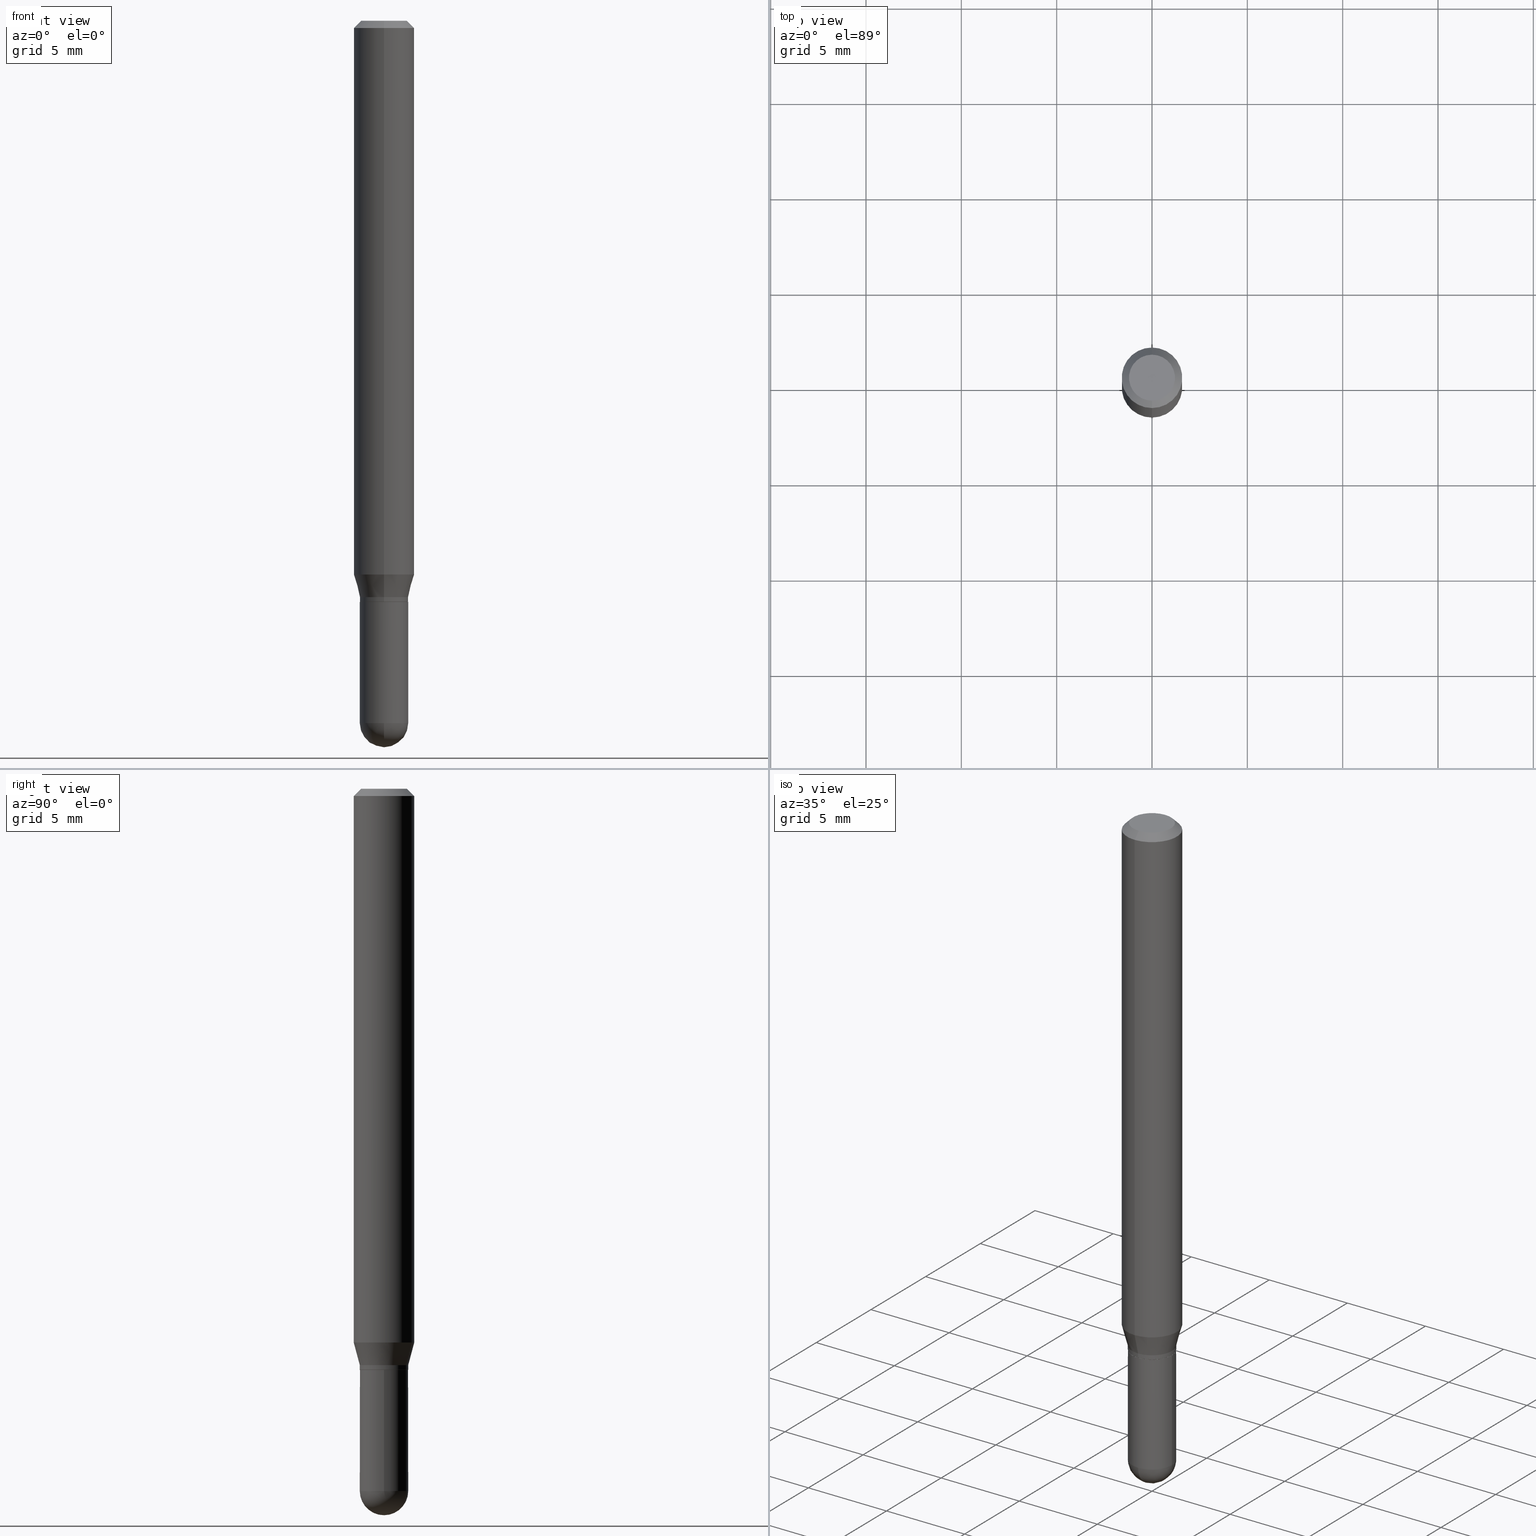
[diagram: canonical four-view strip — front | top / right | iso, engineering-drawing reading convention]
A machine part, canonical four-view strip (front | top / right | iso — engineering-drawing reading convention). The complete STEP part file that produces these views, byte-faithful:
ISO-10303-21;
HEADER;
FILE_DESCRIPTION (( 'STEP AP203' ),
    '1' );
FILE_NAME ('02601.STEP',
    '2024-03-07T20:41:49',
    ( '' ),
    ( '' ),
    'SwSTEP 2.0',
    'SolidWorks 2023',
    '' );
FILE_SCHEMA (( 'CONFIG_CONTROL_DESIGN' ));
ENDSEC;

DATA;
#1 = EDGE_CURVE ( 'NONE', #30, #46, #206, .T. ) ;
#2 = CARTESIAN_POINT ( 'NONE',  ( 0.000000000000000000, 0.000000000000000000, 0.000000000000000000 ) ) ;
#3 = CARTESIAN_POINT ( 'NONE',  ( 3.545929768968448850E-29, -5.062647941322561509E-15, -1.450000000000000178 ) ) ;
#4 = FACE_OUTER_BOUND ( 'NONE', #97, .T. ) ;
#5 = CARTESIAN_POINT ( 'NONE',  ( 8.024525879208538939E-45, -1.145728596932945032E-30, -3.281441226851005816E-16 ) ) ;
#6 = AXIS2_PLACEMENT_3D ( 'NONE', #284, #396, #290 ) ;
#7 = DIRECTION ( 'NONE',  ( 1.000000000000000000, -6.982962677686275388E-15, 0.000000000000000000 ) ) ;
#8 = ADVANCED_FACE ( 'NONE', ( #451 ), #307, .T. ) ;
#9 = FACE_OUTER_BOUND ( 'NONE', #265, .T. ) ;
#10 = CARTESIAN_POINT ( 'NONE',  ( -3.456566525454408447E-16, -0.04950000000000419342, -1.199999999999999956 ) ) ;
#11 = APPROVAL_ROLE ( '' ) ;
#12 = ORIENTED_EDGE ( 'NONE', *, *, #507, .T. ) ;
#13 =( LENGTH_UNIT ( ) NAMED_UNIT ( * ) SI_UNIT ( $, .METRE. ) );
#14 = DIRECTION ( 'NONE',  ( 2.445427275535626126E-29, -3.491540813097021947E-15, -1.000000000000000000 ) ) ;
#15 = AXIS2_PLACEMENT_3D ( 'NONE', #509, #156, #272 ) ;
#16 = CARTESIAN_POINT ( 'NONE',  ( 2.910058457887396519E-29, -4.154933567585457695E-15, -1.190000000000000391 ) ) ;
#17 = CC_DESIGN_PERSON_AND_ORGANIZATION_ASSIGNMENT ( #29, #117, ( #240 ) ) ;
#18 = ORIENTED_EDGE ( 'NONE', *, *, #463, .T. ) ;
#19 = DIRECTION ( 'NONE',  ( 7.105427357601001070E-15, 1.000000000000000000, 0.000000000000000000 ) ) ;
#20 = CARTESIAN_POINT ( 'NONE',  ( -3.491481338842782805E-16, -0.05000000000000513756, -1.449999999999999734 ) ) ;
#21 = EDGE_LOOP ( 'NONE', ( #497, #232, #249, #131, #335 ) ) ;
#22 = CARTESIAN_POINT ( 'NONE',  ( 2.934562567422164701E-29, -4.189777606611775804E-15, -1.200000000000000178 ) ) ;
#23 = ORIENTED_EDGE ( 'NONE', *, *, #474, .F. ) ;
#24 = EDGE_CURVE ( 'NONE', #496, #71, #359, .T. ) ;
#25 = AXIS2_PLACEMENT_3D ( 'NONE', #207, #357, #442 ) ;
#26 = AXIS2_PLACEMENT_3D ( 'NONE', #315, #323, #7 ) ;
#27 = PERSON_AND_ORGANIZATION ( #242, #127 ) ;
#28 = CARTESIAN_POINT ( 'NONE',  ( 2.910058457887396519E-29, -4.154933567585457695E-15, -1.190000000000000391 ) ) ;
#29 = PERSON_AND_ORGANIZATION ( #242, #127 ) ;
#30 = VERTEX_POINT ( 'NONE', #303 ) ;
#31 = EDGE_CURVE ( 'NONE', #36, #235, #461, .T. ) ;
#32 = AXIS2_PLACEMENT_3D ( 'NONE', #55, #61, #297 ) ;
#33 = CARTESIAN_POINT ( 'NONE',  ( 4.440892098500904235E-16, 0.06249999999999599626, -1.143349364905390075 ) ) ;
#34 = APPROVAL_ROLE ( '' ) ;
#35 = UNCERTAINTY_MEASURE_WITH_UNIT (LENGTH_MEASURE( 1.000000000000000082E-05 ), #409, 'distance_accuracy_value', 'NONE');
#36 = VERTEX_POINT ( 'NONE', #147 ) ;
#37 = DIRECTION ( 'NONE',  ( -2.445427275535626126E-29, 3.491540813097021947E-15, 1.000000000000000000 ) ) ;
#38 = DIRECTION ( 'NONE',  ( 1.000000000000000000, -6.982962677686265922E-15, 4.876176775795936353E-29 ) ) ;
#39 = ADVANCED_FACE ( 'NONE', ( #306 ), #152, .T. ) ;
#40 = DIRECTION ( 'NONE',  ( -6.982962677686266711E-15, -1.000000000000000000, 3.491540813097022342E-15 ) ) ;
#41 = DIRECTION ( 'NONE',  ( -6.982962677686265922E-15, -1.000000000000000000, 3.483106191921935554E-15 ) ) ;
#42 = CONICAL_SURFACE ( 'NONE', #144, 0.05000000000000006523, 0.2617993877991499629 ) ;
#43 = APPROVAL_PERSON_ORGANIZATION ( #464, #158, #34 ) ;
#44 = LOCAL_TIME ( 15, 41, 49.00000000000000000, #493 ) ;
#45 = CARTESIAN_POINT ( 'NONE',  ( 2.910058457887396519E-29, -4.154933567585457695E-15, -1.190000000000000391 ) ) ;
#46 = VERTEX_POINT ( 'NONE', #244 ) ;
#47 = CYLINDRICAL_SURFACE ( 'NONE', #492, 0.05000000000000006523 ) ;
#48 = ORIENTED_EDGE ( 'NONE', *, *, #148, .F. ) ;
#49 = EDGE_CURVE ( 'NONE', #218, #46, #170, .T. ) ;
#50 = LINE ( 'NONE', #211, #439 ) ;
#51 = CIRCLE ( 'NONE', #105, 0.05000000000000006523 ) ;
#52 = PERSON_AND_ORGANIZATION ( #242, #127 ) ;
#53 = EDGE_CURVE ( 'NONE', #36, #332, #51, .T. ) ;
#54 = ORIENTED_EDGE ( 'NONE', *, *, #331, .T. ) ;
#55 = CARTESIAN_POINT ( 'NONE',  ( 2.934512730642751911E-29, -4.189848975716427126E-15, -1.200000000000000178 ) ) ;
#56 = DIRECTION ( 'NONE',  ( -2.445427275535626406E-29, 3.491540813097021947E-15, 1.000000000000000000 ) ) ;
#57 = EDGE_CURVE ( 'NONE', #413, #351, #510, .T. ) ;
#58 = CIRCLE ( 'NONE', #163, 0.04950000000000000233 ) ;
#59 = VECTOR ( 'NONE', #261, 39.37007874015748143 ) ;
#60 = ORIENTED_EDGE ( 'NONE', *, *, #133, .F. ) ;
#61 = DIRECTION ( 'NONE',  ( -2.445427275535626406E-29, 3.491540813097021947E-15, 1.000000000000000000 ) ) ;
#62 = CARTESIAN_POINT ( 'NONE',  ( 3.552713678800505071E-16, 0.05000000000000006523, -1.745770406548513192E-16 ) ) ;
#63 = DIRECTION ( 'NONE',  ( -6.982962677686265922E-15, -1.000000000000000000, 2.759442417842689940E-15 ) ) ;
#64 = EDGE_CURVE ( 'NONE', #218, #447, #58, .T. ) ;
#65 = ORIENTED_EDGE ( 'NONE', *, *, #379, .T. ) ;
#66 = LINE ( 'NONE', #217, #59 ) ;
#67 = DIRECTION ( 'NONE',  ( -2.445427275535626406E-29, 3.491540813097021947E-15, 1.000000000000000000 ) ) ;
#68 = AXIS2_PLACEMENT_3D ( 'NONE', #179, #490, #369 ) ;
#69 = PERSON_AND_ORGANIZATION ( #242, #127 ) ;
#70 = ADVANCED_BREP_SHAPE_REPRESENTATION ( '02601', ( #285, #435, #15 ), #187 ) ;
#71 = VERTEX_POINT ( 'NONE', #288 ) ;
#72 = LINE ( 'NONE', #380, #356 ) ;
#73 = DATE_TIME_ROLE ( 'creation_date' ) ;
#74 = EDGE_LOOP ( 'NONE', ( #213, #487, #478, #23 ) ) ;
#75 = CARTESIAN_POINT ( 'NONE',  ( 2.933290017004984254E-29, -4.188103205309878536E-15, -1.199500000000000233 ) ) ;
#76 = PRODUCT_DEFINITION_SHAPE ( 'NONE', 'NONE',  #109 ) ;
#77 = CARTESIAN_POINT ( 'NONE',  ( -3.773273898774340269E-16, -0.04749999999999999362, -1.622959340629920144E-16 ) ) ;
#78 = APPROVAL_DATE_TIME ( #375, #158 ) ;
#79 = EDGE_CURVE ( 'NONE', #332, #36, #502, .T. ) ;
#80 = AXIS2_PLACEMENT_3D ( 'NONE', #304, #220, #450 ) ;
#81 = ORIENTED_EDGE ( 'NONE', *, *, #57, .F. ) ;
#82 = CARTESIAN_POINT ( 'NONE',  ( 3.541653937522551347E-29, -5.068771175318297793E-15, -1.450000000000000178 ) ) ;
#83 = CARTESIAN_POINT ( 'NONE',  ( 4.440892098500907193E-16, 0.06249999999999995143, -0.01500000000000054588 ) ) ;
#84 = CARTESIAN_POINT ( 'NONE',  ( 0.04999999999999999584, -3.491481338843132862E-16, 2.438088387897967896E-30 ) ) ;
#85 = CYLINDRICAL_SURFACE ( 'NONE', #151, 0.06250000000000000000 ) ;
#86 = DIRECTION ( 'NONE',  ( -4.851104656540964275E-15, -0.7071067811865500152, -0.7071067811865450192 ) ) ;
#87 = VECTOR ( 'NONE', #177, 39.37007874015748143 ) ;
#88 = CIRCLE ( 'NONE', #347, 0.04749999999999999362 ) ;
#89 = EDGE_CURVE ( 'NONE', #351, #209, #120, .T. ) ;
#90 = DIRECTION ( 'NONE',  ( 1.000000000000000000, -6.982962677686274599E-15, 0.000000000000000000 ) ) ;
#91 = ADVANCED_FACE ( 'NONE', ( #122 ), #440, .F. ) ;
#92 = ORIENTED_EDGE ( 'NONE', *, *, #338, .F. ) ;
#93 = FACE_OUTER_BOUND ( 'NONE', #287, .T. ) ;
#94 = AXIS2_PLACEMENT_3D ( 'NONE', #99, #414, #63 ) ;
#95 = AXIS2_PLACEMENT_3D ( 'NONE', #3, #473, #203 ) ;
#96 = APPROVAL_PERSON_ORGANIZATION ( #382, #421, #343 ) ;
#97 = EDGE_LOOP ( 'NONE', ( #48, #454 ) ) ;
#98 = EDGE_CURVE ( 'NONE', #437, #496, #280, .T. ) ;
#99 = CARTESIAN_POINT ( 'NONE',  ( 2.934512730642751911E-29, -4.189848975716427126E-15, -1.200000000000000178 ) ) ;
#100 = CIRCLE ( 'NONE', #370, 0.05000000000000014849 ) ;
#101 = DIRECTION ( 'NONE',  ( -6.982962677686265133E-15, -1.000000000000000000, 3.491540813097021947E-15 ) ) ;
#102 = ORIENTED_EDGE ( 'NONE', *, *, #89, .T. ) ;
#103 = DATE_AND_TIME ( #305, #495 ) ;
#104 = ORIENTED_EDGE ( 'NONE', *, *, #498, .T. ) ;
#105 = AXIS2_PLACEMENT_3D ( 'NONE', #328, #354, #208 ) ;
#106 = SHAPE_DEFINITION_REPRESENTATION ( #76, #70 ) ;
#107 = CIRCLE ( 'NONE', #503, 0.05000000000000014849 ) ;
#108 = CARTESIAN_POINT ( 'NONE',  ( 0.000000000000000000, 0.000000000000000000, 0.000000000000000000 ) ) ;
#109 = PRODUCT_DEFINITION ( 'UNKNOWN', '', #240, #459 ) ;
#110 = CARTESIAN_POINT ( 'NONE',  ( 3.661789462108859761E-29, -5.246406859258323786E-15, -1.500000000000000444 ) ) ;
#111 = DIRECTION ( 'NONE',  ( -6.982962677686265922E-15, -1.000000000000000000, 4.370956789862821150E-15 ) ) ;
#112 = COORDINATED_UNIVERSAL_TIME_OFFSET ( 5, 0, .BEHIND. ) ;
#113 = DIRECTION ( 'NONE',  ( -6.982962677686265922E-15, -1.000000000000000000, 3.491540813097021947E-15 ) ) ;
#114 = ORIENTED_EDGE ( 'NONE', *, *, #57, .T. ) ;
#115 = DIRECTION ( 'NONE',  ( -2.445427275535626406E-29, 3.491540813097021947E-15, 1.000000000000000000 ) ) ;
#116 = CYLINDRICAL_SURFACE ( 'NONE', #278, 0.05000000000000006523 ) ;
#117 = PERSON_AND_ORGANIZATION_ROLE ( 'creator' ) ;
#118 = VECTOR ( 'NONE', #86, 39.37007874015748143 ) ;
#119 = FACE_OUTER_BOUND ( 'NONE', #225, .T. ) ;
#120 = LINE ( 'NONE', #134, #118 ) ;
#121 = CARTESIAN_POINT ( 'NONE',  ( 3.668140913303519938E-31, -5.237311219645647553E-17, -0.01500000000000032904 ) ) ;
#122 = FACE_OUTER_BOUND ( 'NONE', #266, .T. ) ;
#123 = ORIENTED_EDGE ( 'NONE', *, *, #24, .T. ) ;
#124 = DIRECTION ( 'NONE',  ( -2.445427275535626406E-29, 3.491540813097021947E-15, 1.000000000000000000 ) ) ;
#125 = CIRCLE ( 'NONE', #165, 0.06250000000000000000 ) ;
#126 = ORIENTED_EDGE ( 'NONE', *, *, #289, .T. ) ;
#127 = ORGANIZATION ( 'UNSPECIFIED', 'UNSPECIFIED', '' ) ;
#128 = DIMENSIONAL_EXPONENTS ( 1.000000000000000000, 0.000000000000000000, 0.000000000000000000, 0.000000000000000000, 0.000000000000000000, 0.000000000000000000, 0.000000000000000000 ) ;
#129 = DIRECTION ( 'NONE',  ( -2.445427275535626406E-29, 3.491540813097021947E-15, 1.000000000000000000 ) ) ;
#130 = SPHERICAL_SURFACE ( 'NONE', #25, 0.05000000000000014849 ) ;
#131 = ORIENTED_EDGE ( 'NONE', *, *, #98, .T. ) ;
#132 = CARTESIAN_POINT ( 'NONE',  ( 0.05000000000000000278, -4.538925740496089139E-15, -1.200000000000000178 ) ) ;
#133 = EDGE_CURVE ( 'NONE', #257, #209, #186, .T. ) ;
#134 = CARTESIAN_POINT ( 'NONE',  ( -4.287811248607203282E-16, -0.06250000000000005551, -0.01500000000000011047 ) ) ;
#135 = EDGE_LOOP ( 'NONE', ( #65, #54, #460, #383 ) ) ;
#136 = CIRCLE ( 'NONE', #386, 0.05000000000000000278 ) ;
#137 = VECTOR ( 'NONE', #446, 39.37007874015748143 ) ;
#138 = ORIENTED_EDGE ( 'NONE', *, *, #31, .T. ) ;
#139 = APPLICATION_CONTEXT ( 'configuration controlled 3d designs of mechanical parts and assemblies' ) ;
#140 = CARTESIAN_POINT ( 'NONE',  ( 3.552713678800859565E-16, 0.04999999999999501371, -1.450000000000000400 ) ) ;
#141 = CARTESIAN_POINT ( 'NONE',  ( -3.456566525454408447E-16, -0.04950000000000419342, -1.199999999999999956 ) ) ;
#142 = AXIS2_PLACEMENT_3D ( 'NONE', #22, #184, #145 ) ;
#143 = ADVANCED_FACE ( 'NONE', ( #9 ), #130, .T. ) ;
#144 = AXIS2_PLACEMENT_3D ( 'NONE', #28, #56, #228 ) ;
#145 = DIRECTION ( 'NONE',  ( 1.000000000000000000, -6.982962677686274599E-15, 0.000000000000000000 ) ) ;
#146 = EDGE_LOOP ( 'NONE', ( #294, #102, #18, #92 ) ) ;
#147 = CARTESIAN_POINT ( 'NONE',  ( -3.491481338842845914E-16, -0.05000000000000422162, -1.190000000000000391 ) ) ;
#148 = EDGE_CURVE ( 'NONE', #447, #218, #448, .T. ) ;
#149 = AXIS2_PLACEMENT_3D ( 'NONE', #108, #467, #113 ) ;
#150 = LINE ( 'NONE', #237, #401 ) ;
#151 = AXIS2_PLACEMENT_3D ( 'NONE', #172, #245, #282 ) ;
#152 = CYLINDRICAL_SURFACE ( 'NONE', #149, 0.06250000000000000000 ) ;
#153 = EDGE_LOOP ( 'NONE', ( #397, #81, #300, #364 ) ) ;
#154 = DIRECTION ( 'NONE',  ( -6.982962677686265133E-15, -1.000000000000000000, 3.491540813097021947E-15 ) ) ;
#155 = DATE_AND_TIME ( #238, #44 ) ;
#156 = DIRECTION ( 'NONE',  ( 0.000000000000000000, 0.000000000000000000, 1.000000000000000000 ) ) ;
#157 = ORIENTED_EDGE ( 'NONE', *, *, #24, .F. ) ;
#158 = APPROVAL ( #196, 'UNSPECIFIED' ) ;
#159 = CARTESIAN_POINT ( 'NONE',  ( 2.795977722405976257E-29, -3.992050971195729009E-15, -1.143349364905389853 ) ) ;
#160 = COORDINATED_UNIVERSAL_TIME_OFFSET ( 5, 0, .BEHIND. ) ;
#161 = ORIENTED_EDGE ( 'NONE', *, *, #345, .T. ) ;
#162 = CARTESIAN_POINT ( 'NONE',  ( 2.934512730642751911E-29, -4.189848975716427126E-15, -1.200000000000000178 ) ) ;
#163 = AXIS2_PLACEMENT_3D ( 'NONE', #436, #391, #322 ) ;
#164 = DIRECTION ( 'NONE',  ( -6.982962677686266711E-15, -1.000000000000000000, 3.491540813097022342E-15 ) ) ;
#165 = AXIS2_PLACEMENT_3D ( 'NONE', #159, #312, #111 ) ;
#166 = ORIENTED_EDGE ( 'NONE', *, *, #456, .T. ) ;
#167 = DIRECTION ( 'NONE',  ( -2.445427275535626406E-29, 3.491540813097021947E-15, 1.000000000000000000 ) ) ;
#168 = EDGE_CURVE ( 'NONE', #71, #496, #136, .T. ) ;
#169 = VERTEX_POINT ( 'NONE', #20 ) ;
#170 = LINE ( 'NONE', #402, #419 ) ;
#171 = APPROVAL ( #366, 'UNSPECIFIED' ) ;
#172 = CARTESIAN_POINT ( 'NONE',  ( 0.000000000000000000, 0.000000000000000000, 0.000000000000000000 ) ) ;
#173 = DIRECTION ( 'NONE',  ( 5.024295867788190974E-15, 0.7071067811865681119, 0.7071067811865270336 ) ) ;
#174 = CIRCLE ( 'NONE', #458, 0.06250000000000000000 ) ;
#175 = EDGE_CURVE ( 'NONE', #231, #169, #511, .T. ) ;
#176 = DIRECTION ( 'NONE',  ( -4.937700262164674260E-15, -0.7071067811865632269, 0.7071067811865319186 ) ) ;
#177 = DIRECTION ( 'NONE',  ( -1.807323732225328167E-15, -0.2588190451025179084, 0.9659258262890690894 ) ) ;
#178 = AXIS2_PLACEMENT_3D ( 'NONE', #2, #389, #38 ) ;
#179 = CARTESIAN_POINT ( 'NONE',  ( 3.668140913303519938E-31, -5.237311219645647553E-17, -0.01500000000000032904 ) ) ;
#180 = FACE_OUTER_BOUND ( 'NONE', #251, .T. ) ;
#181 = CARTESIAN_POINT ( 'NONE',  ( -4.364351673553637142E-16, -0.06250000000000399680, -1.143349364905389409 ) ) ;
#182 = EDGE_LOOP ( 'NONE', ( #330, #378, #260, #372 ) ) ;
#183 = CC_DESIGN_DATE_AND_TIME_ASSIGNMENT ( #103, #73, ( #109 ) ) ;
#184 = DIRECTION ( 'NONE',  ( -2.445468806185136597E-29, 3.491481338843145583E-15, 1.000000000000000000 ) ) ;
#185 = CARTESIAN_POINT ( 'NONE',  ( 3.316907271900976096E-16, 0.04749999999999999362, -3.299202499646587840E-16 ) ) ;
#186 = CIRCLE ( 'NONE', #253, 0.06250000000000000000 ) ;
#187 =( GEOMETRIC_REPRESENTATION_CONTEXT ( 3 ) GLOBAL_UNCERTAINTY_ASSIGNED_CONTEXT ( ( #35 ) ) GLOBAL_UNIT_ASSIGNED_CONTEXT ( ( #409, #371, #298 ) ) REPRESENTATION_CONTEXT ( 'NONE', 'WORKASPACE' ) );
#188 = APPLICATION_CONTEXT ( 'configuration controlled 3d designs of mechanical parts and assemblies' ) ;
#189 = COORDINATED_UNIVERSAL_TIME_OFFSET ( 5, 0, .BEHIND. ) ;
#190 = FACE_OUTER_BOUND ( 'NONE', #153, .T. ) ;
#191 = ORIENTED_EDGE ( 'NONE', *, *, #79, .T. ) ;
#192 = ADVANCED_FACE ( 'NONE', ( #363 ), #210, .T. ) ;
#193 = COORDINATED_UNIVERSAL_TIME_OFFSET ( 5, 0, .BEHIND. ) ;
#194 = FACE_OUTER_BOUND ( 'NONE', #21, .T. ) ;
#195 = LINE ( 'NONE', #236, #267 ) ;
#196 = APPROVAL_STATUS ( 'not_yet_approved' ) ;
#197 = ORIENTED_EDGE ( 'NONE', *, *, #387, .F. ) ;
#198 = DIRECTION ( 'NONE',  ( -2.445468806185136597E-29, 3.491481338843145583E-15, 1.000000000000000000 ) ) ;
#199 = CONICAL_SURFACE ( 'NONE', #80, 0.06250000000000000000, 0.7853981633974483900 ) ;
#200 = DIRECTION ( 'NONE',  ( 1.000000000000000000, -6.982962677686275388E-15, 0.000000000000000000 ) ) ;
#201 = APPROVAL_STATUS ( 'not_yet_approved' ) ;
#202 = ORIENTED_EDGE ( 'NONE', *, *, #252, .F. ) ;
#203 = DIRECTION ( 'NONE',  ( 1.000000000000000000, -6.982962677686275388E-15, 0.000000000000000000 ) ) ;
#204 = FACE_OUTER_BOUND ( 'NONE', #374, .T. ) ;
#205 = DIRECTION ( 'NONE',  ( -2.445468806185136597E-29, 3.491481338843145583E-15, 1.000000000000000000 ) ) ;
#206 = CIRCLE ( 'NONE', #299, 0.05000000000000006523 ) ;
#207 = CARTESIAN_POINT ( 'NONE',  ( 3.541653937522551347E-29, -5.068771175318297793E-15, -1.450000000000000178 ) ) ;
#208 = DIRECTION ( 'NONE',  ( -6.982962677686265133E-15, -1.000000000000000000, 2.731847993664259669E-15 ) ) ;
#209 = VERTEX_POINT ( 'NONE', #256 ) ;
#210 = CONICAL_SURFACE ( 'NONE', #480, 0.05000000000000006523, 0.2617993877991499629 ) ;
#211 = CARTESIAN_POINT ( 'NONE',  ( 3.552713678800795963E-16, 0.04999999999999590883, -1.190000000000000613 ) ) ;
#212 = SECURITY_CLASSIFICATION ( '', '', #462 ) ;
#213 = ORIENTED_EDGE ( 'NONE', *, *, #148, .T. ) ;
#214 = DIRECTION ( 'NONE',  ( 1.000000000000000000, -6.982962677686275388E-15, 0.000000000000000000 ) ) ;
#215 = ORIENTED_EDGE ( 'NONE', *, *, #1, .T. ) ;
#216 = DIRECTION ( 'NONE',  ( -1.000000000000000000, 6.982962677686265922E-15, -4.883557194083112340E-29 ) ) ;
#217 = CARTESIAN_POINT ( 'NONE',  ( -3.491481338843137300E-16, -0.05000000000000006523, 1.745770406548513192E-16 ) ) ;
#218 = VERTEX_POINT ( 'NONE', #367 ) ;
#219 = AXIS2_PLACEMENT_3D ( 'NONE', #82, #432, #469 ) ;
#220 = DIRECTION ( 'NONE',  ( 2.445427275535626406E-29, -3.491540813097021947E-15, -1.000000000000000000 ) ) ;
#221 = ORIENTED_EDGE ( 'NONE', *, *, #331, .F. ) ;
#222 = DIRECTION ( 'NONE',  ( -6.982962677686265922E-15, -1.000000000000000000, 0.000000000000000000 ) ) ;
#223 = CARTESIAN_POINT ( 'NONE',  ( 3.840629472727447874E-16, 0.04749999999999999362, -4.939923113072091241E-16 ) ) ;
#224 = DATE_AND_TIME ( #344, #333 ) ;
#225 = EDGE_LOOP ( 'NONE', ( #388, #126, #157, #398, #337 ) ) ;
#226 = CARTESIAN_POINT ( 'NONE',  ( 3.541653937522551347E-29, -5.068771175318297793E-15, -1.450000000000000178 ) ) ;
#227 = PLANE ( 'NONE',  #327 ) ;
#228 = DIRECTION ( 'NONE',  ( -6.982962677686265133E-15, -1.000000000000000000, 2.731847993664259669E-15 ) ) ;
#229 = ORIENTED_EDGE ( 'NONE', *, *, #281, .F. ) ;
#230 = PERSON_AND_ORGANIZATION_ROLE ( 'classification_officer' ) ;
#231 = VERTEX_POINT ( 'NONE', #407 ) ;
#232 = ORIENTED_EDGE ( 'NONE', *, *, #175, .T. ) ;
#233 = SPHERICAL_SURFACE ( 'NONE', #219, 0.05000000000000014849 ) ;
#234 = APPLICATION_PROTOCOL_DEFINITION ( 'international standard', 'config_control_design', 1994, #188 ) ;
#235 = VERTEX_POINT ( 'NONE', #181 ) ;
#236 = CARTESIAN_POINT ( 'NONE',  ( -4.364351673553916201E-16, -0.06250000000000000000, 2.182213008185638717E-16 ) ) ;
#237 = CARTESIAN_POINT ( 'NONE',  ( -0.04999999999999999584, 3.552713678800500634E-16, -2.459467545127452961E-30 ) ) ;
#238 = CALENDAR_DATE ( 2024, 7, 3 ) ;
#239 = CIRCLE ( 'NONE', #264, 0.06250000000000000000 ) ;
#240 = PRODUCT_DEFINITION_FORMATION_WITH_SPECIFIED_SOURCE ( 'ANY', '', #434, .NOT_KNOWN. ) ;
#241 = ADVANCED_FACE ( 'NONE', ( #194 ), #302, .T. ) ;
#242 = PERSON ( 'UNSPECIFIED', 'UNSPECIFIED', 'UNSPECIFIED', ('UNSPECIFIED'), ('UNSPECIFIED'), ('UNSPECIFIED') ) ;
#243 = CARTESIAN_POINT ( 'NONE',  ( 0.000000000000000000, 0.000000000000000000, 0.000000000000000000 ) ) ;
#244 = CARTESIAN_POINT ( 'NONE',  ( 3.552713678800795963E-16, 0.04999999999999583944, -1.199500000000000233 ) ) ;
#245 = DIRECTION ( 'NONE',  ( -2.445427275535626406E-29, 3.491540813097021947E-15, 1.000000000000000000 ) ) ;
#246 = ADVANCED_FACE ( 'NONE', ( #204 ), #233, .T. ) ;
#247 = CONICAL_SURFACE ( 'NONE', #68, 0.06250000000000000000, 0.7853981633974483900 ) ;
#248 = DIRECTION ( 'NONE',  ( 2.438088387897960049E-29, -3.491481338843145188E-15, -1.000000000000000000 ) ) ;
#249 = ORIENTED_EDGE ( 'NONE', *, *, #281, .T. ) ;
#250 = DIRECTION ( 'NONE',  ( -2.445468806185136877E-29, 3.491481338843145188E-15, 1.000000000000000000 ) ) ;
#251 = EDGE_LOOP ( 'NONE', ( #114, #270 ) ) ;
#252 = EDGE_CURVE ( 'NONE', #437, #500, #292, .T. ) ;
#253 = AXIS2_PLACEMENT_3D ( 'NONE', #479, #124, #41 ) ;
#254 = CIRCLE ( 'NONE', #494, 0.05000000000000006523 ) ;
#255 = ORIENTED_EDGE ( 'NONE', *, *, #53, .F. ) ;
#256 = CARTESIAN_POINT ( 'NONE',  ( -4.364351673553912750E-16, -0.06250000000000005551, -0.01500000000000011047 ) ) ;
#257 = VERTEX_POINT ( 'NONE', #83 ) ;
#258 = FACE_OUTER_BOUND ( 'NONE', #182, .T. ) ;
#259 = CARTESIAN_POINT ( 'NONE',  ( 3.545929768968448850E-29, -5.062647941322561509E-15, -1.450000000000000178 ) ) ;
#260 = ORIENTED_EDGE ( 'NONE', *, *, #474, .T. ) ;
#261 = DIRECTION ( 'NONE',  ( -2.445427275535626686E-29, 3.491540813097021947E-15, 1.000000000000000000 ) ) ;
#262 = ADVANCED_FACE ( 'NONE', ( #4 ), #350, .F. ) ;
#263 = VERTEX_POINT ( 'NONE', #33 ) ;
#264 = AXIS2_PLACEMENT_3D ( 'NONE', #121, #115, #273 ) ;
#265 = EDGE_LOOP ( 'NONE', ( #296, #385, #202, #229 ) ) ;
#266 = EDGE_LOOP ( 'NONE', ( #123, #441 ) ) ;
#267 = VECTOR ( 'NONE', #384, 39.37007874015748143 ) ;
#268 = CC_DESIGN_APPROVAL ( #421, ( #240 ) ) ;
#269 = PERSON_AND_ORGANIZATION_ROLE ( 'creator' ) ;
#270 = ORIENTED_EDGE ( 'NONE', *, *, #329, .T. ) ;
#271 = CARTESIAN_POINT ( 'NONE',  ( 3.996802888650851578E-16, 0.04999999999999590883, -1.190000000000000613 ) ) ;
#272 = DIRECTION ( 'NONE',  ( 1.000000000000000000, 0.000000000000000000, 0.000000000000000000 ) ) ;
#273 = DIRECTION ( 'NONE',  ( -6.982962677686265922E-15, -1.000000000000000000, 3.483106191921935554E-15 ) ) ;
#274 = DIRECTION ( 'NONE',  ( -2.445468806185136877E-29, 3.491481338843145188E-15, 1.000000000000000000 ) ) ;
#275 = CC_DESIGN_DATE_AND_TIME_ASSIGNMENT ( #224, #400, ( #212 ) ) ;
#276 = CALENDAR_DATE ( 2024, 7, 3 ) ;
#277 = DIRECTION ( 'NONE',  ( -2.445427275535626406E-29, 3.491540813097021947E-15, 1.000000000000000000 ) ) ;
#278 = AXIS2_PLACEMENT_3D ( 'NONE', #353, #167, #154 ) ;
#279 = MECHANICAL_CONTEXT ( 'NONE', #139, 'mechanical' ) ;
#280 = LINE ( 'NONE', #84, #472 ) ;
#281 = EDGE_CURVE ( 'NONE', #169, #437, #319, .T. ) ;
#282 = DIRECTION ( 'NONE',  ( -6.982962677686265922E-15, -1.000000000000000000, 3.491540813097021947E-15 ) ) ;
#283 = AXIS2_PLACEMENT_3D ( 'NONE', #162, #37, #433 ) ;
#284 = CARTESIAN_POINT ( 'NONE',  ( 2.934512730642751911E-29, -4.189848975716427126E-15, -1.200000000000000178 ) ) ;
#285 = MANIFOLD_SOLID_BREP ( 'Body-Move/Copy2[1]', #491 ) ;
#286 = LOCAL_TIME ( 15, 41, 49.00000000000000000, #112 ) ;
#287 = EDGE_LOOP ( 'NONE', ( #221, #368, #161, #60 ) ) ;
#288 = CARTESIAN_POINT ( 'NONE',  ( -0.05000000000000000278, -4.270941406087117853E-15, -1.200000000000000178 ) ) ;
#289 = EDGE_CURVE ( 'NONE', #231, #71, #150, .T. ) ;
#290 = DIRECTION ( 'NONE',  ( -6.982962677686265922E-15, -1.000000000000000000, 2.759442417842689940E-15 ) ) ;
#291 = EDGE_CURVE ( 'NONE', #46, #30, #254, .T. ) ;
#292 = CIRCLE ( 'NONE', #26, 0.04999999999999999584 ) ;
#293 = ORIENTED_EDGE ( 'NONE', *, *, #53, .T. ) ;
#294 = ORIENTED_EDGE ( 'NONE', *, *, #329, .F. ) ;
#295 = EDGE_CURVE ( 'NONE', #500, #231, #377, .T. ) ;
#296 = ORIENTED_EDGE ( 'NONE', *, *, #507, .F. ) ;
#297 = DIRECTION ( 'NONE',  ( -6.982962677686265922E-15, -1.000000000000000000, 2.759442417842689940E-15 ) ) ;
#298 =( NAMED_UNIT ( * ) SI_UNIT ( $, .STERADIAN. ) SOLID_ANGLE_UNIT ( ) );
#299 = AXIS2_PLACEMENT_3D ( 'NONE', #404, #339, #505 ) ;
#300 = ORIENTED_EDGE ( 'NONE', *, *, #338, .T. ) ;
#301 = VECTOR ( 'NONE', #423, 39.37007874015748143 ) ;
#302 = CYLINDRICAL_SURFACE ( 'NONE', #178, 0.04999999999999999584 ) ;
#303 = CARTESIAN_POINT ( 'NONE',  ( -3.491481338842846900E-16, -0.05000000000000429101, -1.199500000000000011 ) ) ;
#304 = CARTESIAN_POINT ( 'NONE',  ( 3.668140913303519938E-31, -5.237311219645647553E-17, -0.01500000000000032904 ) ) ;
#305 = CALENDAR_DATE ( 2024, 7, 3 ) ;
#306 = FACE_OUTER_BOUND ( 'NONE', #135, .T. ) ;
#307 = CONICAL_SURFACE ( 'NONE', #94, 0.04950000000000000233, 0.7853981633974739252 ) ;
#308 = ORIENTED_EDGE ( 'NONE', *, *, #79, .F. ) ;
#309 = CYLINDRICAL_SURFACE ( 'NONE', #360, 0.04999999999999999584 ) ;
#310 = APPLICATION_PROTOCOL_DEFINITION ( 'international standard', 'config_control_design', 1994, #139 ) ;
#311 = EDGE_CURVE ( 'NONE', #263, #235, #125, .T. ) ;
#312 = DIRECTION ( 'NONE',  ( -2.445427275535626406E-29, 3.491540813097021947E-15, 1.000000000000000000 ) ) ;
#313 = APPROVAL_DATE_TIME ( #155, #171 ) ;
#314 = EDGE_LOOP ( 'NONE', ( #293, #104, #346, #422 ) ) ;
#315 = CARTESIAN_POINT ( 'NONE',  ( 3.545929768968448850E-29, -5.062647941322561509E-15, -1.450000000000000178 ) ) ;
#316 = ADVANCED_FACE ( 'NONE', ( #348 ), #116, .T. ) ;
#317 = CALENDAR_DATE ( 2024, 7, 3 ) ;
#318 = EDGE_LOOP ( 'NONE', ( #215, #166, #255, #197 ) ) ;
#319 = CIRCLE ( 'NONE', #465, 0.04999999999999999584 ) ;
#320 = ADVANCED_FACE ( 'NONE', ( #119 ), #309, .T. ) ;
#321 = LOCAL_TIME ( 15, 41, 49.00000000000000000, #160 ) ;
#322 = DIRECTION ( 'NONE',  ( -6.982962677686265922E-15, -1.000000000000000000, 2.759442417842689940E-15 ) ) ;
#323 = DIRECTION ( 'NONE',  ( -2.445468806185136597E-29, 3.491481338843145583E-15, 1.000000000000000000 ) ) ;
#324 = VERTEX_POINT ( 'NONE', #110 ) ;
#325 = DIRECTION ( 'NONE',  ( -6.982962677686265133E-15, -1.000000000000000000, 2.731847993664259669E-15 ) ) ;
#326 = CARTESIAN_POINT ( 'NONE',  ( 0.000000000000000000, 0.000000000000000000, 0.000000000000000000 ) ) ;
#327 = AXIS2_PLACEMENT_3D ( 'NONE', #185, #14, #342 ) ;
#328 = CARTESIAN_POINT ( 'NONE',  ( 2.910058457887396519E-29, -4.154933567585457695E-15, -1.190000000000000391 ) ) ;
#329 = EDGE_CURVE ( 'NONE', #351, #413, #88, .T. ) ;
#330 = ORIENTED_EDGE ( 'NONE', *, *, #49, .F. ) ;
#331 = EDGE_CURVE ( 'NONE', #263, #257, #355, .T. ) ;
#332 = VERTEX_POINT ( 'NONE', #271 ) ;
#333 = LOCAL_TIME ( 15, 41, 49.00000000000000000, #193 ) ;
#334 = CARTESIAN_POINT ( 'NONE',  ( 3.541653937522551347E-29, -5.068771175318297793E-15, -1.450000000000000178 ) ) ;
#335 = ORIENTED_EDGE ( 'NONE', *, *, #168, .F. ) ;
#336 = CARTESIAN_POINT ( 'NONE',  ( 0.04999999999999999584, -4.975360907851482386E-15, -1.450000000000000178 ) ) ;
#337 = ORIENTED_EDGE ( 'NONE', *, *, #252, .T. ) ;
#338 = EDGE_CURVE ( 'NONE', #413, #257, #72, .T. ) ;
#339 = DIRECTION ( 'NONE',  ( -2.445427275535626406E-29, 3.491540813097021947E-15, 1.000000000000000000 ) ) ;
#340 = AXIS2_PLACEMENT_3D ( 'NONE', #45, #486, #325 ) ;
#341 = LENGTH_MEASURE_WITH_UNIT ( LENGTH_MEASURE( 0.02539999999999999897 ), #13 );
#342 = DIRECTION ( 'NONE',  ( 6.982962677686265922E-15, 1.000000000000000000, -3.491540813097021947E-15 ) ) ;
#343 = APPROVAL_ROLE ( '' ) ;
#344 = CALENDAR_DATE ( 2024, 7, 3 ) ;
#345 = EDGE_CURVE ( 'NONE', #235, #209, #195, .T. ) ;
#346 = ORIENTED_EDGE ( 'NONE', *, *, #379, .F. ) ;
#347 = AXIS2_PLACEMENT_3D ( 'NONE', #429, #277, #40 ) ;
#348 = FACE_OUTER_BOUND ( 'NONE', #425, .T. ) ;
#349 = PERSON_AND_ORGANIZATION_ROLE ( 'design_owner' ) ;
#350 = PLANE ( 'NONE',  #283 ) ;
#351 = VERTEX_POINT ( 'NONE', #77 ) ;
#352 = ADVANCED_FACE ( 'NONE', ( #394 ), #47, .T. ) ;
#353 = CARTESIAN_POINT ( 'NONE',  ( 0.000000000000000000, 0.000000000000000000, 0.000000000000000000 ) ) ;
#354 = DIRECTION ( 'NONE',  ( -2.445427275535626406E-29, 3.491540813097021947E-15, 1.000000000000000000 ) ) ;
#355 = LINE ( 'NONE', #475, #301 ) ;
#356 = VECTOR ( 'NONE', #426, 39.37007874015748143 ) ;
#357 = DIRECTION ( 'NONE',  ( 1.000000000000000000, -6.982962677686265922E-15, 4.883557194083111780E-29 ) ) ;
#358 = DIRECTION ( 'NONE',  ( -1.000000000000000000, 6.982962677686265922E-15, -4.876176775795935793E-29 ) ) ;
#359 = CIRCLE ( 'NONE', #142, 0.05000000000000000278 ) ;
#360 = AXIS2_PLACEMENT_3D ( 'NONE', #243, #205, #390 ) ;
#361 = CC_DESIGN_APPROVAL ( #171, ( #212 ) ) ;
#362 = DIRECTION ( 'NONE',  ( 1.839019923739597949E-15, 0.2588190451025246253, 0.9659258262890670910 ) ) ;
#363 = FACE_OUTER_BOUND ( 'NONE', #443, .T. ) ;
#364 = ORIENTED_EDGE ( 'NONE', *, *, #133, .T. ) ;
#365 = PRODUCT_RELATED_PRODUCT_CATEGORY ( 'detail', '', ( #434 ) ) ;
#366 = APPROVAL_STATUS ( 'not_yet_approved' ) ;
#367 = CARTESIAN_POINT ( 'NONE',  ( 3.534950110406793936E-16, 0.04949999999999581124, -1.200000000000000400 ) ) ;
#368 = ORIENTED_EDGE ( 'NONE', *, *, #311, .T. ) ;
#369 = DIRECTION ( 'NONE',  ( 6.982962677686265922E-15, 1.000000000000000000, -3.483106191921935554E-15 ) ) ;
#370 = AXIS2_PLACEMENT_3D ( 'NONE', #334, #373, #19 ) ;
#371 =( NAMED_UNIT ( * ) PLANE_ANGLE_UNIT ( ) SI_UNIT ( $, .RADIAN. ) );
#372 = ORIENTED_EDGE ( 'NONE', *, *, #291, .F. ) ;
#373 = DIRECTION ( 'NONE',  ( 1.000000000000000000, -7.105427357601001070E-15, 4.926315508542082329E-29 ) ) ;
#374 = EDGE_LOOP ( 'NONE', ( #416, #12, #405, #452 ) ) ;
#375 = DATE_AND_TIME ( #276, #286 ) ;
#376 = AXIS2_PLACEMENT_3D ( 'NONE', #5, #476, #164 ) ;
#377 = CIRCLE ( 'NONE', #95, 0.04999999999999999584 ) ;
#378 = ORIENTED_EDGE ( 'NONE', *, *, #64, .T. ) ;
#379 = EDGE_CURVE ( 'NONE', #235, #263, #174, .T. ) ;
#380 = CARTESIAN_POINT ( 'NONE',  ( 4.364351673553919652E-16, 0.06249999999999995143, -0.01500000000000054588 ) ) ;
#381 = ADVANCED_FACE ( 'NONE', ( #406 ), #42, .T. ) ;
#382 = PERSON_AND_ORGANIZATION ( #242, #127 ) ;
#383 = ORIENTED_EDGE ( 'NONE', *, *, #345, .F. ) ;
#384 = DIRECTION ( 'NONE',  ( -2.445427275535626686E-29, 3.491540813097021947E-15, 1.000000000000000000 ) ) ;
#385 = ORIENTED_EDGE ( 'NONE', *, *, #445, .T. ) ;
#386 = AXIS2_PLACEMENT_3D ( 'NONE', #482, #444, #90 ) ;
#387 = EDGE_CURVE ( 'NONE', #30, #36, #66, .T. ) ;
#388 = ORIENTED_EDGE ( 'NONE', *, *, #295, .T. ) ;
#389 = DIRECTION ( 'NONE',  ( -2.445468806185136597E-29, 3.491481338843145583E-15, 1.000000000000000000 ) ) ;
#390 = DIRECTION ( 'NONE',  ( 1.000000000000000000, -6.982962677686265922E-15, 4.876176775795936353E-29 ) ) ;
#391 = DIRECTION ( 'NONE',  ( -2.445427275535626406E-29, 3.491540813097021947E-15, 1.000000000000000000 ) ) ;
#392 = AXIS2_PLACEMENT_3D ( 'NONE', #259, #453, #214 ) ;
#393 = CARTESIAN_POINT ( 'NONE',  ( 3.491481338843426713E-16, 0.04999999999999581168, -1.200000000000000400 ) ) ;
#394 = FACE_OUTER_BOUND ( 'NONE', #318, .T. ) ;
#395 = ADVANCED_FACE ( 'NONE', ( #180 ), #227, .F. ) ;
#396 = DIRECTION ( 'NONE',  ( -2.445427275535626406E-29, 3.491540813097021947E-15, 1.000000000000000000 ) ) ;
#397 = ORIENTED_EDGE ( 'NONE', *, *, #89, .F. ) ;
#398 = ORIENTED_EDGE ( 'NONE', *, *, #98, .F. ) ;
#399 = AXIS2_PLACEMENT_3D ( 'NONE', #393, #248, #358 ) ;
#400 = DATE_TIME_ROLE ( 'classification_date' ) ;
#401 = VECTOR ( 'NONE', #274, 39.37007874015748143 ) ;
#402 = CARTESIAN_POINT ( 'NONE',  ( 3.517186542012788950E-16, 0.04949999999999581124, -1.200000000000000400 ) ) ;
#403 = CC_DESIGN_SECURITY_CLASSIFICATION ( #212, ( #240 ) ) ;
#404 = CARTESIAN_POINT ( 'NONE',  ( 2.933290017004984254E-29, -4.188103205309878536E-15, -1.199500000000000233 ) ) ;
#405 = ORIENTED_EDGE ( 'NONE', *, *, #175, .F. ) ;
#406 = FACE_OUTER_BOUND ( 'NONE', #314, .T. ) ;
#407 = CARTESIAN_POINT ( 'NONE',  ( -0.04999999999999999584, -4.270941406087117853E-15, -1.450000000000000178 ) ) ;
#408 = ORIENTED_EDGE ( 'NONE', *, *, #498, .F. ) ;
#409 =( CONVERSION_BASED_UNIT ( 'INCH', #341 ) LENGTH_UNIT ( ) NAMED_UNIT ( #128 ) );
#410 = DIRECTION ( 'NONE',  ( -6.982962677686265922E-15, -1.000000000000000000, 4.370956789862821150E-15 ) ) ;
#411 = DIRECTION ( 'NONE',  ( -2.445427275535626406E-29, 3.491540813097021947E-15, 1.000000000000000000 ) ) ;
#412 = CONICAL_SURFACE ( 'NONE', #32, 0.04950000000000000233, 0.7853981633974739252 ) ;
#413 = VERTEX_POINT ( 'NONE', #223 ) ;
#414 = DIRECTION ( 'NONE',  ( -2.445427275535626406E-29, 3.491540813097021947E-15, 1.000000000000000000 ) ) ;
#415 = CC_DESIGN_PERSON_AND_ORGANIZATION_ASSIGNMENT ( #508, #424, ( #240 ) ) ;
#416 = ORIENTED_EDGE ( 'NONE', *, *, #445, .F. ) ;
#417 = ADVANCED_FACE ( 'NONE', ( #506 ), #199, .T. ) ;
#418 = APPROVAL_DATE_TIME ( #471, #421 ) ;
#419 = VECTOR ( 'NONE', #173, 39.37007874015748143 ) ;
#420 = VECTOR ( 'NONE', #176, 39.37007874015748143 ) ;
#421 = APPROVAL ( #201, 'UNSPECIFIED' ) ;
#422 = ORIENTED_EDGE ( 'NONE', *, *, #31, .F. ) ;
#423 = DIRECTION ( 'NONE',  ( -2.445427275535626686E-29, 3.491540813097021947E-15, 1.000000000000000000 ) ) ;
#424 = PERSON_AND_ORGANIZATION_ROLE ( 'design_supplier' ) ;
#425 = EDGE_LOOP ( 'NONE', ( #431, #428, #483, #308 ) ) ;
#426 = DIRECTION ( 'NONE',  ( 4.937700262164548042E-15, 0.7071067811865451302, -0.7071067811865499042 ) ) ;
#427 = PERSON_AND_ORGANIZATION ( #242, #127 ) ;
#428 = ORIENTED_EDGE ( 'NONE', *, *, #291, .T. ) ;
#429 = CARTESIAN_POINT ( 'NONE',  ( 8.024525879208538939E-45, -1.145728596932945032E-30, -3.281441226851005816E-16 ) ) ;
#430 = ADVANCED_FACE ( 'NONE', ( #190 ), #247, .T. ) ;
#431 = ORIENTED_EDGE ( 'NONE', *, *, #456, .F. ) ;
#432 = DIRECTION ( 'NONE',  ( 1.000000000000000000, -6.982962677686265922E-15, 4.883557194083111780E-29 ) ) ;
#433 = DIRECTION ( 'NONE',  ( -6.982962677686265922E-15, -1.000000000000000000, 3.491540813097021947E-15 ) ) ;
#434 = PRODUCT ( '02601', '02601', '', ( #279 ) ) ;
#435 = MANIFOLD_SOLID_BREP ( 'Body-Move/Copy2[2]', #457 ) ;
#436 = CARTESIAN_POINT ( 'NONE',  ( 2.934512730642751911E-29, -4.189848975716427126E-15, -1.200000000000000178 ) ) ;
#437 = VERTEX_POINT ( 'NONE', #336 ) ;
#438 = CC_DESIGN_PERSON_AND_ORGANIZATION_ASSIGNMENT ( #69, #230, ( #212 ) ) ;
#439 = VECTOR ( 'NONE', #362, 39.37007874015748854 ) ;
#440 = PLANE ( 'NONE',  #399 ) ;
#441 = ORIENTED_EDGE ( 'NONE', *, *, #168, .T. ) ;
#442 = DIRECTION ( 'NONE',  ( -6.982962677686265922E-15, -1.000000000000000000, 5.463695987328509871E-15 ) ) ;
#443 = EDGE_LOOP ( 'NONE', ( #408, #191, #138, #489 ) ) ;
#444 = DIRECTION ( 'NONE',  ( -2.445468806185136597E-29, 3.491481338843145583E-15, 1.000000000000000000 ) ) ;
#445 = EDGE_CURVE ( 'NONE', #324, #500, #100, .T. ) ;
#446 = DIRECTION ( 'NONE',  ( -2.445427275535626686E-29, 3.491540813097021947E-15, 1.000000000000000000 ) ) ;
#447 = VERTEX_POINT ( 'NONE', #141 ) ;
#448 = CIRCLE ( 'NONE', #6, 0.04950000000000000233 ) ;
#449 = CARTESIAN_POINT ( 'NONE',  ( -3.491481338842845914E-16, -0.05000000000000422162, -1.190000000000000391 ) ) ;
#450 = DIRECTION ( 'NONE',  ( 6.982962677686265922E-15, 1.000000000000000000, -3.483106191921935554E-15 ) ) ;
#451 = FACE_OUTER_BOUND ( 'NONE', #74, .T. ) ;
#452 = ORIENTED_EDGE ( 'NONE', *, *, #295, .F. ) ;
#453 = DIRECTION ( 'NONE',  ( -2.445468806185136597E-29, 3.491481338843145583E-15, 1.000000000000000000 ) ) ;
#454 = ORIENTED_EDGE ( 'NONE', *, *, #64, .F. ) ;
#455 = LINE ( 'NONE', #62, #137 ) ;
#456 = EDGE_CURVE ( 'NONE', #46, #332, #455, .T. ) ;
#457 = CLOSED_SHELL ( 'NONE', ( #352, #8, #417, #39, #381, #192, #485, #430, #395, #262, #501, #316 ) ) ;
#458 = AXIS2_PLACEMENT_3D ( 'NONE', #499, #67, #410 ) ;
#459 = DESIGN_CONTEXT ( 'detailed design', #188, 'design' ) ;
#460 = ORIENTED_EDGE ( 'NONE', *, *, #463, .F. ) ;
#461 = LINE ( 'NONE', #449, #87 ) ;
#462 = SECURITY_CLASSIFICATION_LEVEL ( 'unclassified' ) ;
#463 = EDGE_CURVE ( 'NONE', #209, #257, #239, .T. ) ;
#464 = PERSON_AND_ORGANIZATION ( #242, #127 ) ;
#465 = AXIS2_PLACEMENT_3D ( 'NONE', #468, #198, #200 ) ;
#466 = DIRECTION ( 'NONE',  ( -6.982962677686265133E-15, -1.000000000000000000, 2.731847993664259669E-15 ) ) ;
#467 = DIRECTION ( 'NONE',  ( -2.445427275535626406E-29, 3.491540813097021947E-15, 1.000000000000000000 ) ) ;
#468 = CARTESIAN_POINT ( 'NONE',  ( 3.545929768968448850E-29, -5.062647941322561509E-15, -1.450000000000000178 ) ) ;
#469 = DIRECTION ( 'NONE',  ( -6.982962677686265922E-15, -1.000000000000000000, 5.463695987328509871E-15 ) ) ;
#470 = CC_DESIGN_PERSON_AND_ORGANIZATION_ASSIGNMENT ( #27, #269, ( #109 ) ) ;
#471 = DATE_AND_TIME ( #317, #321 ) ;
#472 = VECTOR ( 'NONE', #250, 39.37007874015748143 ) ;
#473 = DIRECTION ( 'NONE',  ( -2.445468806185136597E-29, 3.491481338843145583E-15, 1.000000000000000000 ) ) ;
#474 = EDGE_CURVE ( 'NONE', #447, #30, #484, .T. ) ;
#475 = CARTESIAN_POINT ( 'NONE',  ( 4.440892098500625669E-16, 0.06250000000000000000, -2.182213008185638717E-16 ) ) ;
#476 = DIRECTION ( 'NONE',  ( -2.445427275535626406E-29, 3.491540813097021947E-15, 1.000000000000000000 ) ) ;
#477 = CC_DESIGN_PERSON_AND_ORGANIZATION_ASSIGNMENT ( #427, #349, ( #434 ) ) ;
#478 = ORIENTED_EDGE ( 'NONE', *, *, #1, .F. ) ;
#479 = CARTESIAN_POINT ( 'NONE',  ( 3.668140913303519938E-31, -5.237311219645647553E-17, -0.01500000000000032904 ) ) ;
#480 = AXIS2_PLACEMENT_3D ( 'NONE', #16, #411, #488 ) ;
#481 = CC_DESIGN_APPROVAL ( #158, ( #109 ) ) ;
#482 = CARTESIAN_POINT ( 'NONE',  ( 2.934562567422164701E-29, -4.189777606611775804E-15, -1.200000000000000178 ) ) ;
#483 = ORIENTED_EDGE ( 'NONE', *, *, #387, .T. ) ;
#484 = LINE ( 'NONE', #10, #420 ) ;
#485 = ADVANCED_FACE ( 'NONE', ( #93 ), #85, .T. ) ;
#486 = DIRECTION ( 'NONE',  ( -2.445427275535626406E-29, 3.491540813097021947E-15, 1.000000000000000000 ) ) ;
#487 = ORIENTED_EDGE ( 'NONE', *, *, #49, .T. ) ;
#488 = DIRECTION ( 'NONE',  ( -6.982962677686265133E-15, -1.000000000000000000, 2.731847993664259669E-15 ) ) ;
#489 = ORIENTED_EDGE ( 'NONE', *, *, #311, .F. ) ;
#490 = DIRECTION ( 'NONE',  ( 2.445427275535626406E-29, -3.491540813097021947E-15, -1.000000000000000000 ) ) ;
#491 = CLOSED_SHELL ( 'NONE', ( #320, #143, #91, #246, #241 ) ) ;
#492 = AXIS2_PLACEMENT_3D ( 'NONE', #326, #129, #101 ) ;
#493 = COORDINATED_UNIVERSAL_TIME_OFFSET ( 5, 0, .BEHIND. ) ;
#494 = AXIS2_PLACEMENT_3D ( 'NONE', #75, #512, #466 ) ;
#495 = LOCAL_TIME ( 15, 41, 49.00000000000000000, #189 ) ;
#496 = VERTEX_POINT ( 'NONE', #132 ) ;
#497 = ORIENTED_EDGE ( 'NONE', *, *, #289, .F. ) ;
#498 = EDGE_CURVE ( 'NONE', #332, #263, #50, .T. ) ;
#499 = CARTESIAN_POINT ( 'NONE',  ( 2.795977722405976257E-29, -3.992050971195729009E-15, -1.143349364905389853 ) ) ;
#500 = VERTEX_POINT ( 'NONE', #140 ) ;
#501 = ADVANCED_FACE ( 'NONE', ( #258 ), #412, .T. ) ;
#502 = CIRCLE ( 'NONE', #340, 0.05000000000000006523 ) ;
#503 = AXIS2_PLACEMENT_3D ( 'NONE', #226, #216, #222 ) ;
#504 = APPROVAL_PERSON_ORGANIZATION ( #52, #171, #11 ) ;
#505 = DIRECTION ( 'NONE',  ( -6.982962677686265133E-15, -1.000000000000000000, 2.731847993664259669E-15 ) ) ;
#506 = FACE_OUTER_BOUND ( 'NONE', #146, .T. ) ;
#507 = EDGE_CURVE ( 'NONE', #324, #169, #107, .T. ) ;
#508 = PERSON_AND_ORGANIZATION ( #242, #127 ) ;
#509 = CARTESIAN_POINT ( 'NONE',  ( 0.000000000000000000, 0.000000000000000000, 0.000000000000000000 ) ) ;
#510 = CIRCLE ( 'NONE', #376, 0.04749999999999999362 ) ;
#511 = CIRCLE ( 'NONE', #392, 0.04999999999999999584 ) ;
#512 = DIRECTION ( 'NONE',  ( -2.445427275535626406E-29, 3.491540813097021947E-15, 1.000000000000000000 ) ) ;
ENDSEC;
END-ISO-10303-21;
